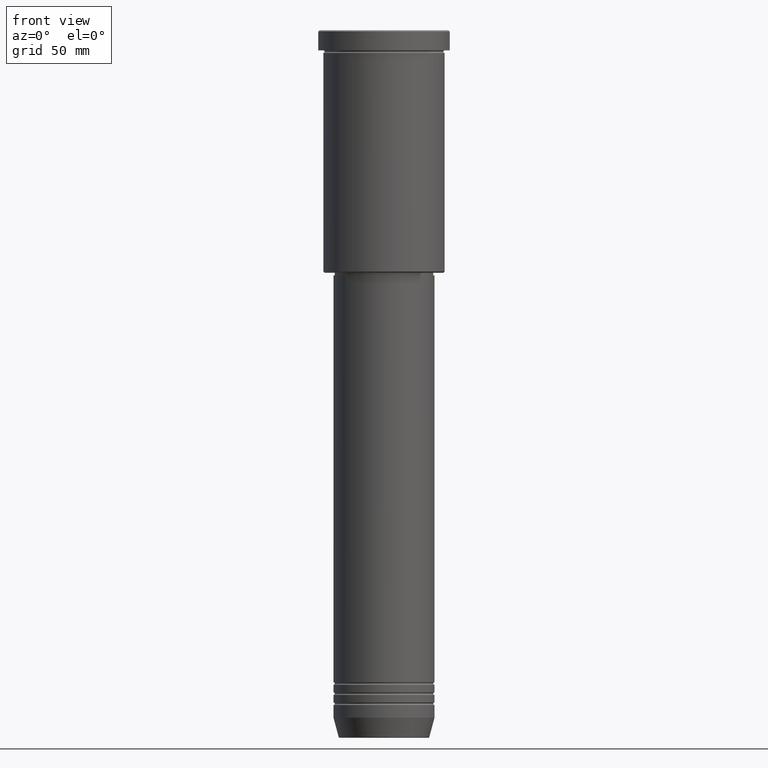
[diagram: clean part render]
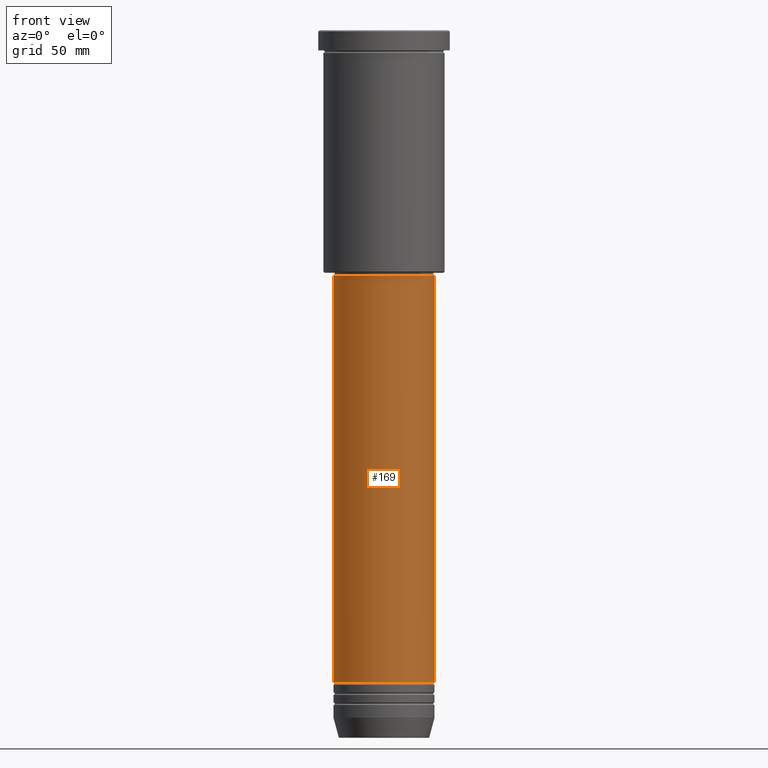
[diagram: same view with one face highlighted and labeled with its STEP entity id]
A machine part, front view. The second image highlights one B-rep face of the part: STEP entity #169.
In plain terms, the highlighted cylindrical surface (partial cylindrical patch) has radius 20 mm, axis along (-0, -0, 1).
Its self-contained STEP definition (entity closure, byte-faithful):
#37 = CARTESIAN_POINT ( 'NONE',  ( -20.00000000000000355, 2.449293598294706907E-15, 0.000000000000000000 ) ) ;
#44 = VERTEX_POINT ( 'NONE', #59 ) ;
#59 = CARTESIAN_POINT ( 'NONE',  ( 20.00000000000000355, 0.000000000000000000, -97.00000000000002842 ) ) ;
#77 = DIRECTION ( 'NONE',  ( 1.000000000000000000, 0.000000000000000000, 0.000000000000000000 ) ) ;
#104 = DIRECTION ( 'NONE',  ( -0.000000000000000000, -0.000000000000000000, 1.000000000000000000 ) ) ;
#150 = VERTEX_POINT ( 'NONE', #560 ) ;
#169 = ADVANCED_FACE ( 'NONE', ( #281 ), #923, .T. ) ;
#173 = CARTESIAN_POINT ( 'NONE',  ( 0.000000000000000000, 0.000000000000000000, 0.000000000000000000 ) ) ;
#193 = EDGE_LOOP ( 'NONE', ( #246, #688, #839, #1051 ) ) ;
#246 = ORIENTED_EDGE ( 'NONE', *, *, #275, .F. ) ;
#275 = EDGE_CURVE ( 'NONE', #543, #150, #314, .T. ) ;
#279 = VECTOR ( 'NONE', #297, 1000.000000000000000 ) ;
#281 = FACE_OUTER_BOUND ( 'NONE', #193, .T. ) ;
#297 = DIRECTION ( 'NONE',  ( -0.000000000000000000, -0.000000000000000000, 1.000000000000000000 ) ) ;
#314 = LINE ( 'NONE', #37, #279 ) ;
#346 = CARTESIAN_POINT ( 'NONE',  ( 20.00000000000000355, 0.000000000000000000, -258.0000000000000000 ) ) ;
#412 = CIRCLE ( 'NONE', #1135, 20.00000000000000355 ) ;
#461 = DIRECTION ( 'NONE',  ( 1.000000000000000000, 0.000000000000000000, 0.000000000000000000 ) ) ;
#541 = DIRECTION ( 'NONE',  ( -0.000000000000000000, -0.000000000000000000, 1.000000000000000000 ) ) ;
#543 = VERTEX_POINT ( 'NONE', #807 ) ;
#548 = CIRCLE ( 'NONE', #1136, 20.00000000000000355 ) ;
#558 = CARTESIAN_POINT ( 'NONE',  ( 0.000000000000000000, 0.000000000000000000, -258.0000000000000000 ) ) ;
#560 = CARTESIAN_POINT ( 'NONE',  ( -20.00000000000000355, 2.449293598294706907E-15, -97.00000000000002842 ) ) ;
#581 = AXIS2_PLACEMENT_3D ( 'NONE', #173, #104, #461 ) ;
#607 = EDGE_CURVE ( 'NONE', #543, #924, #412, .T. ) ;
#644 = EDGE_CURVE ( 'NONE', #924, #44, #922, .T. ) ;
#676 = DIRECTION ( 'NONE',  ( -0.000000000000000000, -0.000000000000000000, 1.000000000000000000 ) ) ;
#688 = ORIENTED_EDGE ( 'NONE', *, *, #607, .T. ) ;
#701 = VECTOR ( 'NONE', #676, 1000.000000000000000 ) ;
#806 = DIRECTION ( 'NONE',  ( -0.000000000000000000, -0.000000000000000000, 1.000000000000000000 ) ) ;
#807 = CARTESIAN_POINT ( 'NONE',  ( -20.00000000000000355, 2.449293598294706907E-15, -258.0000000000000000 ) ) ;
#839 = ORIENTED_EDGE ( 'NONE', *, *, #644, .T. ) ;
#918 = DIRECTION ( 'NONE',  ( 1.000000000000000000, 0.000000000000000000, 0.000000000000000000 ) ) ;
#922 = LINE ( 'NONE', #1123, #701 ) ;
#923 = CYLINDRICAL_SURFACE ( 'NONE', #581, 20.00000000000000355 ) ;
#924 = VERTEX_POINT ( 'NONE', #346 ) ;
#941 = EDGE_CURVE ( 'NONE', #150, #44, #548, .T. ) ;
#1051 = ORIENTED_EDGE ( 'NONE', *, *, #941, .F. ) ;
#1084 = CARTESIAN_POINT ( 'NONE',  ( 0.000000000000000000, 0.000000000000000000, -97.00000000000002842 ) ) ;
#1123 = CARTESIAN_POINT ( 'NONE',  ( 20.00000000000000355, 0.000000000000000000, 0.000000000000000000 ) ) ;
#1135 = AXIS2_PLACEMENT_3D ( 'NONE', #558, #541, #918 ) ;
#1136 = AXIS2_PLACEMENT_3D ( 'NONE', #1084, #806, #77 ) ;